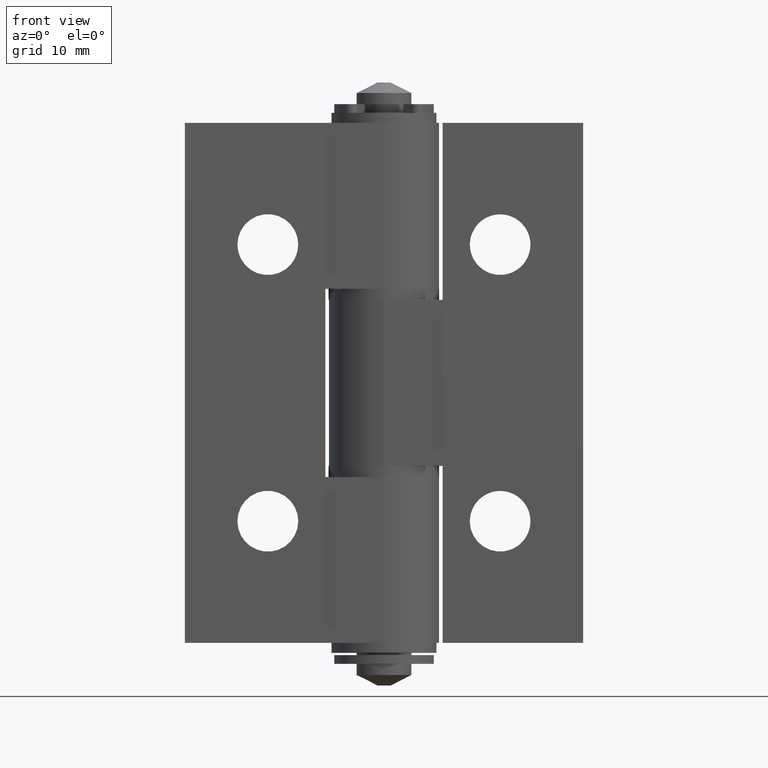
[diagram: clean part render]
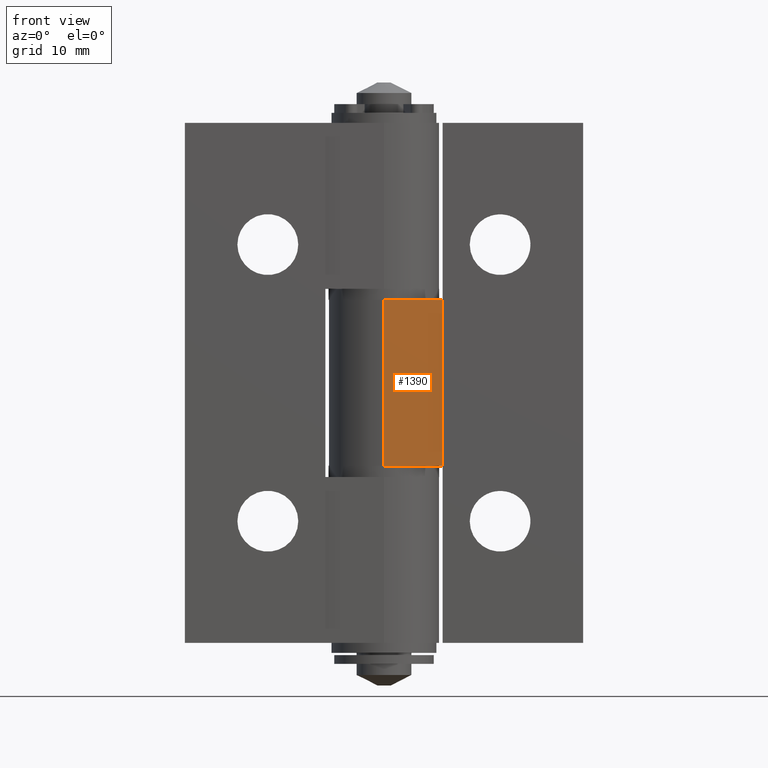
[diagram: same view with one face highlighted and labeled with its STEP entity id]
A machine part, front view. The second image highlights one B-rep face of the part: STEP entity #1390.
In plain terms, the highlighted planar face has unit normal (0, -1, 0).
Its self-contained STEP definition (entity closure, byte-faithful):
#173=FACE_OUTER_BOUND('',#273,.T.);
#273=EDGE_LOOP('',(#1065,#1066,#1067,#1068));
#458=LINE('',#2195,#564);
#459=LINE('',#2202,#565);
#466=LINE('',#2223,#572);
#470=LINE('',#2234,#576);
#564=VECTOR('',#1739,5.3);
#565=VECTOR('',#1746,5.3);
#572=VECTOR('',#1759,15.);
#576=VECTOR('',#1765,15.);
#675=VERTEX_POINT('',#2192);
#676=VERTEX_POINT('',#2194);
#678=VERTEX_POINT('',#2200);
#679=VERTEX_POINT('',#2201);
#818=EDGE_CURVE('',#676,#675,#458,.T.);
#821=EDGE_CURVE('',#678,#679,#459,.T.);
#831=EDGE_CURVE('',#675,#678,#466,.T.);
#836=EDGE_CURVE('',#676,#679,#470,.T.);
#1065=ORIENTED_EDGE('',*,*,#818,.T.);
#1066=ORIENTED_EDGE('',*,*,#831,.T.);
#1067=ORIENTED_EDGE('',*,*,#821,.T.);
#1068=ORIENTED_EDGE('',*,*,#836,.F.);
#1338=PLANE('',#1502);
#1390=ADVANCED_FACE('',(#173),#1338,.T.);
#1502=AXIS2_PLACEMENT_3D('',#2233,#1763,#1764);
#1739=DIRECTION('',(1.,3.14214063573157E-16,0.));
#1746=DIRECTION('',(-1.,-3.14214063573157E-16,0.));
#1759=DIRECTION('',(0.,0.,1.));
#1763=DIRECTION('center_axis',(3.14214063573157E-16,-1.,0.));
#1764=DIRECTION('ref_axis',(1.,0.,0.));
#1765=DIRECTION('',(0.,0.,1.));
#2192=CARTESIAN_POINT('',(5.3,-5.,-7.5));
#2194=CARTESIAN_POINT('',(1.11022302462516E-15,-5.,-7.5));
#2195=CARTESIAN_POINT('',(2.65,-5.,-7.5));
#2200=CARTESIAN_POINT('',(5.3,-5.,7.5));
#2201=CARTESIAN_POINT('',(1.11022302462516E-15,-5.,7.5));
#2202=CARTESIAN_POINT('',(-8.14012212926072,-5.,7.5));
#2223=CARTESIAN_POINT('',(5.3,-5.,0.));
#2233=CARTESIAN_POINT('Origin',(1.11022302462516E-15,-5.,0.));
#2234=CARTESIAN_POINT('',(1.11022302462516E-15,-5.,0.));